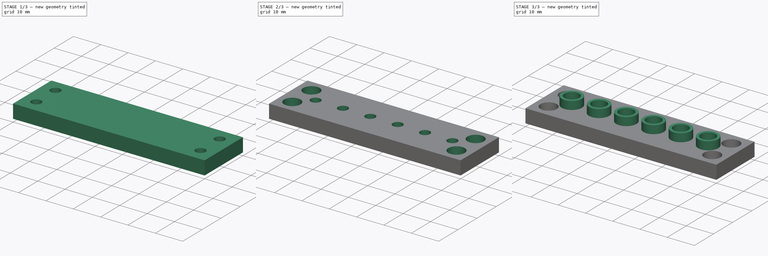
[diagram: build sequence overview — one tinted view per stage of 3, left to right]
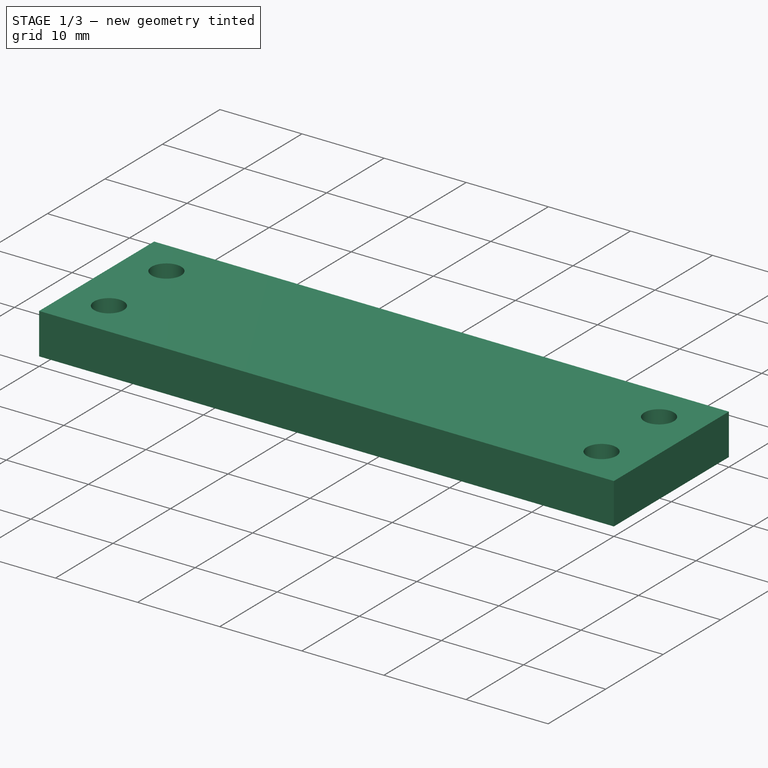
[diagram: stage 1 of 3 — iso view after this stage's code; geometry added in this stage tinted green]
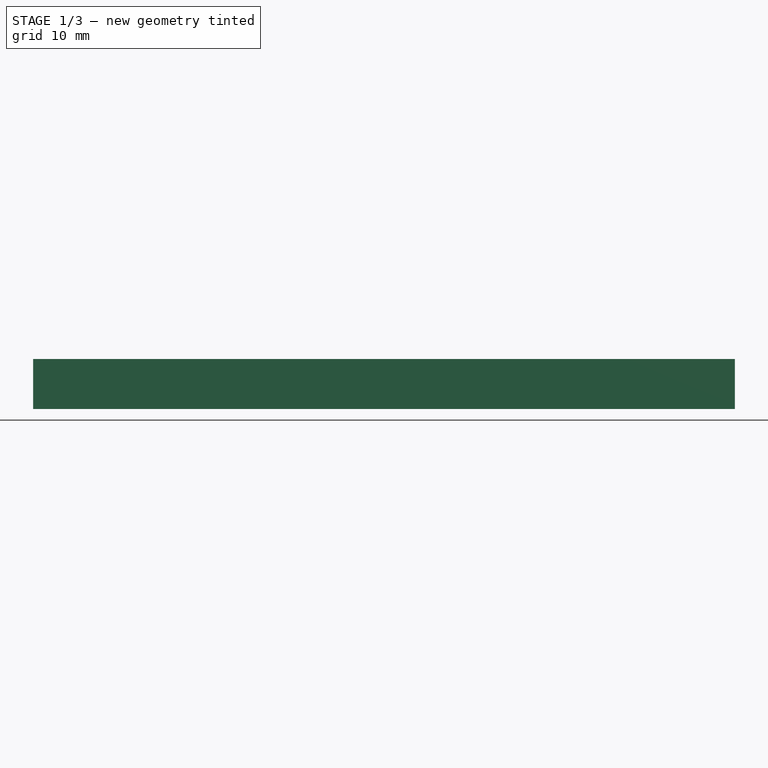
[diagram: stage 1 of 3 — front view after this stage's code; geometry added in this stage tinted green]
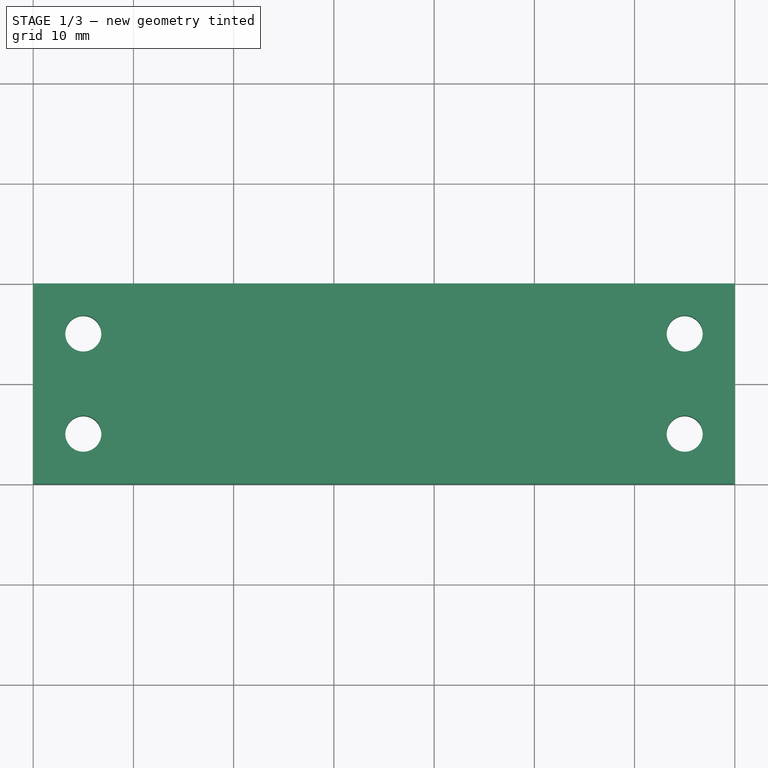
[diagram: stage 1 of 3 — top view after this stage's code; geometry added in this stage tinted green]
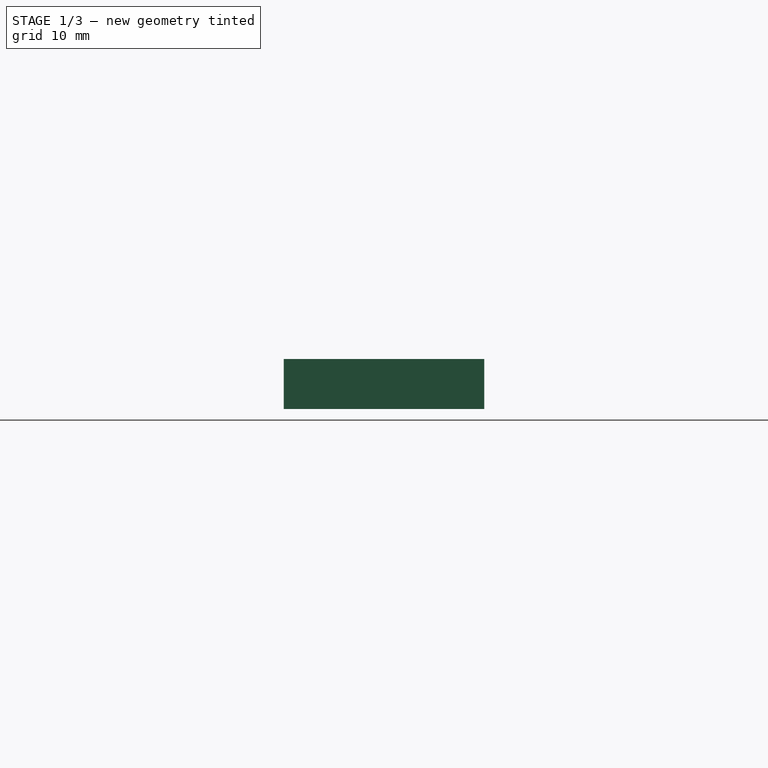
[diagram: stage 1 of 3 — right view after this stage's code; geometry added in this stage tinted green]
FCSTD DOCUMENT
Label: DeltaArmJig
objects: Sketcher::SketchObject×6, PartDesign::Pocket×4, PartDesign::Pad×2
note: 14 computed .brp shape members not serialized (recipe doc carries the construction recipe); baked Part::Feature solids carry a one-line shape summary decoded from their .brp

FEATURE [Sketcher::SketchObject] Sketch
  sketch-geometry (10):
    g0: LineSegment StartX=0 StartY=0 StartZ=0 EndX=0 EndY=20 EndZ=0
    g1: LineSegment StartX=0 StartY=20 StartZ=0 EndX=18 EndY=20 EndZ=0
    g2: LineSegment StartX=52 StartY=20 StartZ=0 EndX=70 EndY=20 EndZ=0
    g3: LineSegment StartX=70 StartY=20 StartZ=0 EndX=70 EndY=0 EndZ=0
    g4: LineSegment StartX=70 StartY=0 StartZ=0 EndX=52 EndY=0 EndZ=0
    g5: LineSegment StartX=18 StartY=0 StartZ=0 EndX=0 EndY=0 EndZ=0
    g6: LineSegment StartX=18 StartY=20 StartZ=0 EndX=52 EndY=20 EndZ=0
    g7: LineSegment [constr] StartX=52 StartY=20 StartZ=0 EndX=52 EndY=0 EndZ=0
    g8: LineSegment StartX=52 StartY=0 StartZ=0 EndX=18 EndY=0 EndZ=0
    g9: LineSegment [constr] StartX=18 StartY=0 StartZ=0 EndX=18 EndY=20 EndZ=0
  constraints (25):
    c: Vertical(g0)
    c: Coincident(g0,g1)
    c: Horizontal(g1)
    c: Horizontal(g2)
    c: Coincident(g2,g3)
    c: Vertical(g3)
    c: Coincident(g3,g4)
    c: Horizontal(g4)
    c: Coincident(g5,g0)
    c: Horizontal(g5)
    c: Coincident(g6,g7)
    c: Coincident(g7,g8)
    c: Coincident(g8,g9)
    c: Coincident(g9,g6)
    c: Horizontal(g6)
    c: Horizontal(g8)
    c: Vertical(g7)
    c: Vertical(g9)
    c: Coincident(g6,g1)
    c: Coincident(g7,g4)
    c: Equal(g2,g1)
    c: DistanceX(g0) = 0
    c: DistanceY(g0) = 0
    c: DistanceY(g0,g0) = 20
    c: DistanceX(g0,g2) = 70
FEATURE [PartDesign::Pad] Pad
  Length = 5
  MirroredExtent = false
  Sketch = -> Sketch
FEATURE [Sketcher::SketchObject] Sketch001
  Placement = pos=(0,0,5) rot=(0,0,1;0rad)
  Support = -> Pad [Face10]
  sketch-geometry (8):
    g0: LineSegment [constr] StartX=5 StartY=15 StartZ=0 EndX=65 EndY=15 EndZ=0
    g1: LineSegment [constr] StartX=65 StartY=15 StartZ=0 EndX=65 EndY=5 EndZ=0
    g2: LineSegment [constr] StartX=65 StartY=5 StartZ=0 EndX=5 EndY=5 EndZ=0
    g3: LineSegment [constr] StartX=5 StartY=5 StartZ=0 EndX=5 EndY=15 EndZ=0
    g4: Circle CenterX=5 CenterY=15 CenterZ=0 NormalX=0 NormalY=0 NormalZ=1 Radius=1.8
    g5: Circle CenterX=65 CenterY=15 CenterZ=0 NormalX=0 NormalY=0 NormalZ=1 Radius=1.8
    g6: Circle CenterX=65 CenterY=5 CenterZ=0 NormalX=0 NormalY=0 NormalZ=1 Radius=1.8
    g7: Circle CenterX=5 CenterY=5 CenterZ=0 NormalX=0 NormalY=0 NormalZ=1 Radius=1.8
  constraints (20):
    c: Coincident(g0,g1)
    c: Coincident(g1,g2)
    c: Coincident(g2,g3)
    c: Coincident(g3,g0)
    c: Horizontal(g0)
    c: Horizontal(g2)
    c: Vertical(g1)
    c: Vertical(g3)
    c: DistanceX(g2) = 5
    c: DistanceY(g2) = 5
    c: DistanceX(g2,g1) = 60
    c: DistanceY(g0,g2) = -10
    c: Coincident(g4,g0)
    c: Coincident(g5,g0)
    c: Coincident(g6,g1)
    c: Coincident(g7,g2)
    c: Equal(g7,g4)
    c: Equal(g4,g5)
    c: Equal(g5,g6)
    c: Radius(g4) = 1.8
FEATURE [PartDesign::Pocket] Pocket
  Length = 5
  Sketch = -> Sketch001
  Type = 0
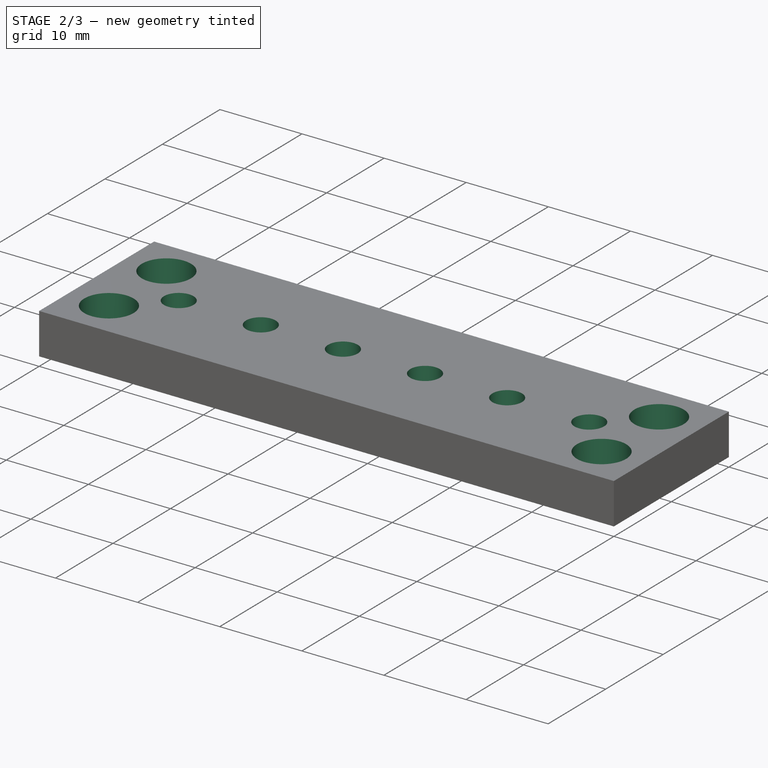
[diagram: stage 2 of 3 — iso view after this stage's code; geometry added in this stage tinted green]
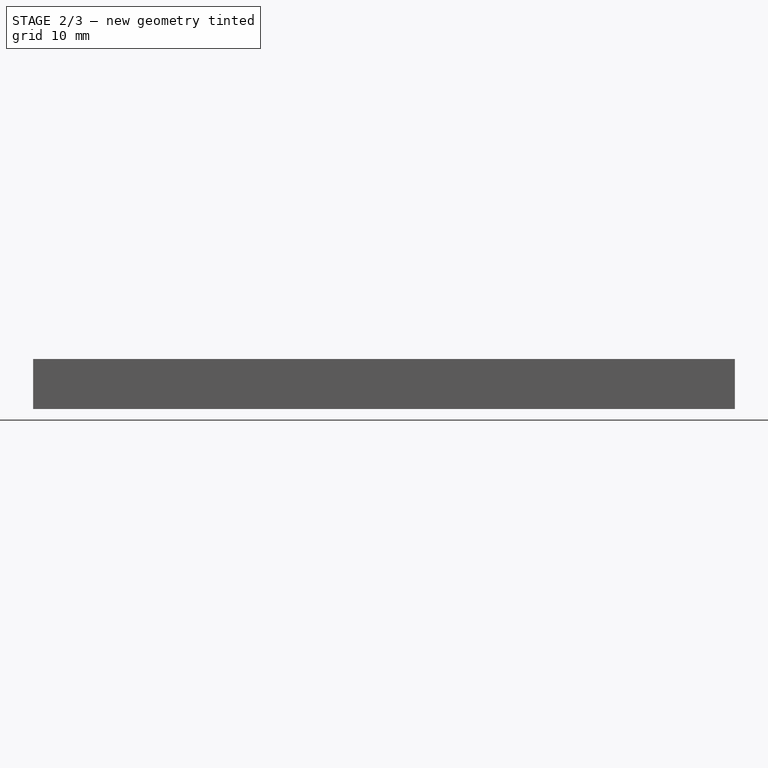
[diagram: stage 2 of 3 — front view after this stage's code; geometry added in this stage tinted green]
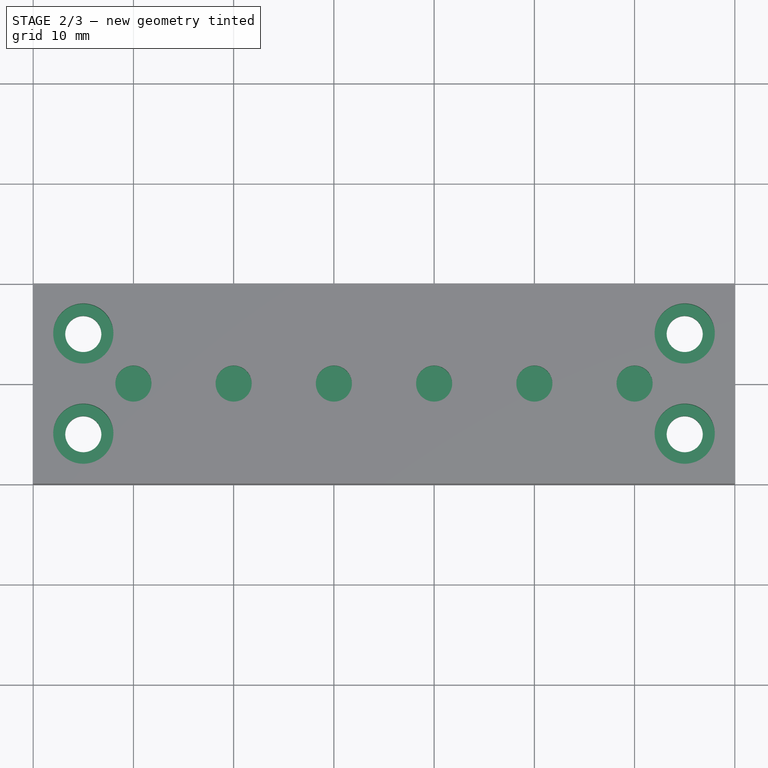
[diagram: stage 2 of 3 — top view after this stage's code; geometry added in this stage tinted green]
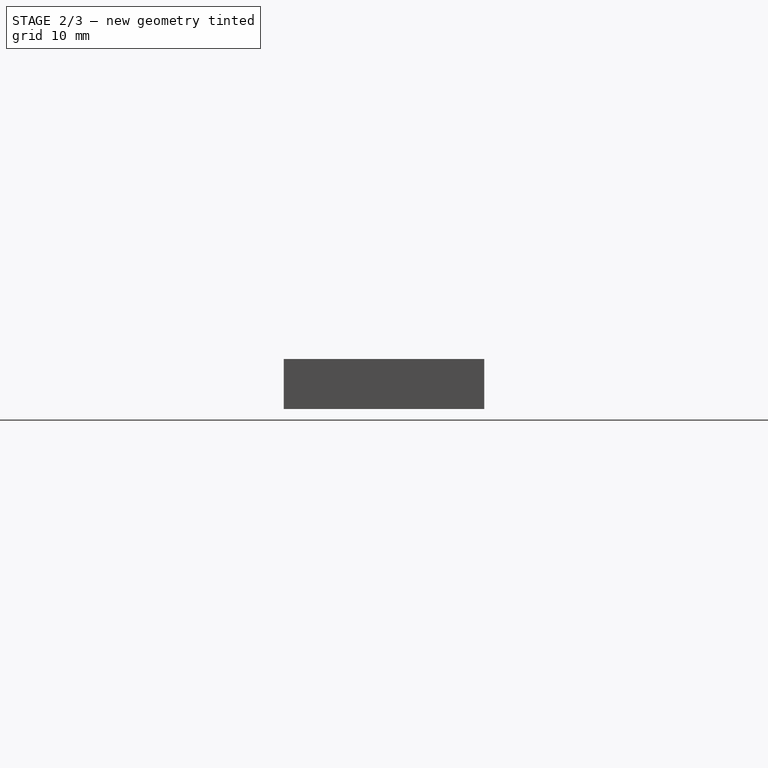
[diagram: stage 2 of 3 — right view after this stage's code; geometry added in this stage tinted green]
FEATURE [Sketcher::SketchObject] Sketch002
  Placement = pos=(0,0,5) rot=(0,0,1;0rad)
  Support = -> Pocket [Face5]
  sketch-geometry (8):
    g0: LineSegment [constr] StartX=5 StartY=15 StartZ=0 EndX=65 EndY=15 EndZ=0
    g1: LineSegment [constr] StartX=65 StartY=15 StartZ=0 EndX=65 EndY=5 EndZ=0
    g2: LineSegment [constr] StartX=65 StartY=5 StartZ=0 EndX=5 EndY=5 EndZ=0
    g3: LineSegment [constr] StartX=5 StartY=5 StartZ=0 EndX=5 EndY=15 EndZ=0
    g4: Circle CenterX=5 CenterY=15 CenterZ=0 NormalX=0 NormalY=0 NormalZ=1 Radius=3
    g5: Circle CenterX=65 CenterY=15 CenterZ=0 NormalX=0 NormalY=0 NormalZ=1 Radius=3
    g6: Circle CenterX=65 CenterY=5 CenterZ=0 NormalX=0 NormalY=0 NormalZ=1 Radius=3
    g7: Circle CenterX=5 CenterY=5 CenterZ=0 NormalX=0 NormalY=0 NormalZ=1 Radius=3
  constraints (20):
    c: Coincident(g0,g1)
    c: Coincident(g1,g2)
    c: Coincident(g2,g3)
    c: Coincident(g3,g0)
    c: Horizontal(g0)
    c: Horizontal(g2)
    c: Vertical(g1)
    c: Vertical(g3)
    c: DistanceX(g2) = 5
    c: DistanceY(g2) = 5
    c: DistanceX(g2,g1) = 60
    c: DistanceY(g0,g2) = -10
    c: Coincident(g4,g0)
    c: Coincident(g5,g0)
    c: Coincident(g6,g1)
    c: Coincident(g7,g2)
    c: Equal(g7,g4)
    c: Equal(g4,g5)
    c: Equal(g5,g6)
    c: Radius(g4) = 3
FEATURE [PartDesign::Pocket] Pocket001
  Length = 3
  Sketch = -> Sketch002
  Type = 0
FEATURE [Sketcher::SketchObject] Sketch003
  Placement = pos=(0,0,5) rot=(0,0,1;0rad)
  Support = -> Pocket001 [Face5]
  sketch-geometry (13):
    g0: LineSegment [constr] StartX=0 StartY=10 StartZ=0 EndX=10 EndY=10 EndZ=0
    g1: LineSegment [constr] StartX=10 StartY=10 StartZ=0 EndX=20 EndY=10 EndZ=0
    g2: LineSegment [constr] StartX=20 StartY=10 StartZ=0 EndX=30 EndY=10 EndZ=0
    g3: LineSegment [constr] StartX=30 StartY=10 StartZ=0 EndX=40 EndY=10 EndZ=0
    g4: LineSegment [constr] StartX=40 StartY=10 StartZ=0 EndX=50 EndY=10 EndZ=0
    g5: LineSegment [constr] StartX=50 StartY=10 StartZ=0 EndX=60 EndY=10 EndZ=0
    g6: LineSegment [constr] StartX=60 StartY=10 StartZ=0 EndX=70 EndY=10 EndZ=0
    g7: Circle CenterX=10 CenterY=10 CenterZ=0 NormalX=0 NormalY=0 NormalZ=1 Radius=1.8
    g8: Circle CenterX=20 CenterY=10 CenterZ=0 NormalX=0 NormalY=0 NormalZ=1 Radius=1.8
    g9: Circle CenterX=30 CenterY=10 CenterZ=0 NormalX=0 NormalY=0 NormalZ=1 Radius=1.8
    g10: Circle CenterX=40 CenterY=10 CenterZ=0 NormalX=0 NormalY=0 NormalZ=1 Radius=1.8
    g11: Circle CenterX=50 CenterY=10 CenterZ=0 NormalX=0 NormalY=0 NormalZ=1 Radius=1.8
    g12: Circle CenterX=60 CenterY=10 CenterZ=0 NormalX=0 NormalY=0 NormalZ=1 Radius=1.8
  constraints (34):
    c: Horizontal(g0)
    c: Coincident(g0,g1)
    c: Horizontal(g1)
    c: Coincident(g1,g2)
    c: Horizontal(g2)
    c: Coincident(g2,g3)
    c: Horizontal(g3)
    c: Coincident(g3,g4)
    c: Horizontal(g4)
    c: Coincident(g4,g5)
    c: Horizontal(g5)
    c: Coincident(g5,g6)
    c: Horizontal(g6)
    c: Equal(g0,g1)
    c: Equal(g1,g2)
    c: Equal(g2,g3)
    c: Equal(g3,g4)
    c: Equal(g4,g5)
    c: Equal(g5,g6)
    c: DistanceX(g0,g6) = 70
    c: DistanceX(g0) = 0
    c: DistanceY(g0) = 10
    c: Coincident(g7,g0)
    c: Coincident(g8,g1)
    c: Coincident(g9,g2)
    c: Coincident(g10,g3)
    c: Coincident(g11,g4)
    c: Coincident(g12,g5)
    c: Equal(g12,g11)
    c: Equal(g11,g10)
    c: Equal(g10,g9)
    c: Equal(g9,g8)
    c: Equal(g8,g7)
    c: Radius(g7) = 1.8
FEATURE [PartDesign::Pocket] Pocket002
  Length = 1.8
  Sketch = -> Sketch003
  Type = 0
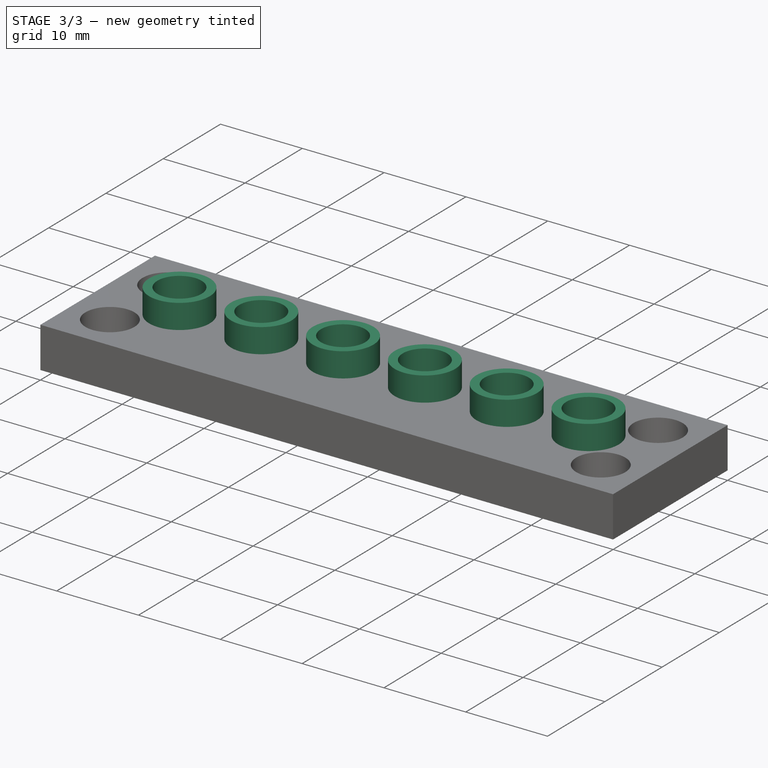
[diagram: stage 3 of 3 — iso view after this stage's code; geometry added in this stage tinted green]
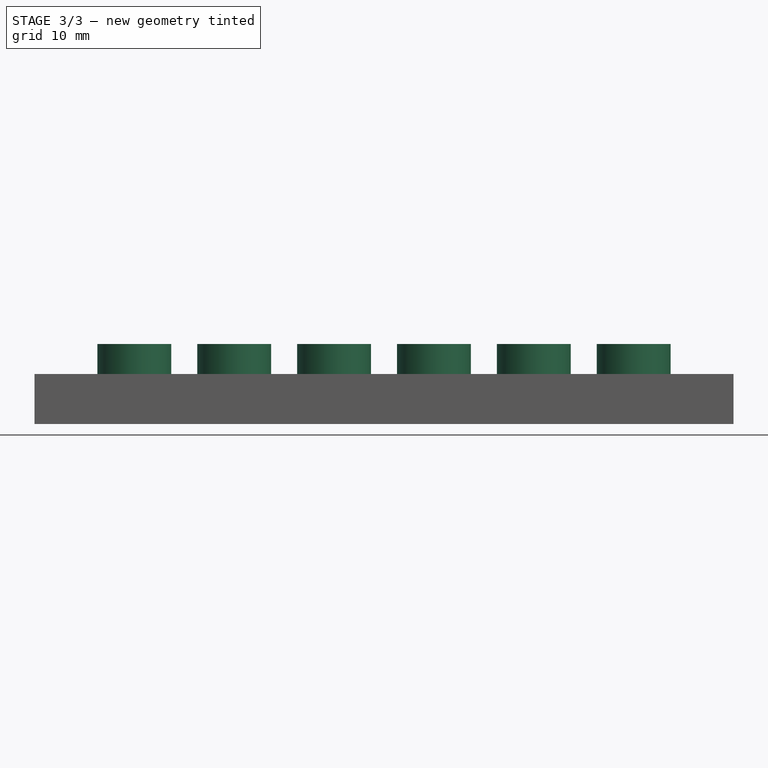
[diagram: stage 3 of 3 — front view after this stage's code; geometry added in this stage tinted green]
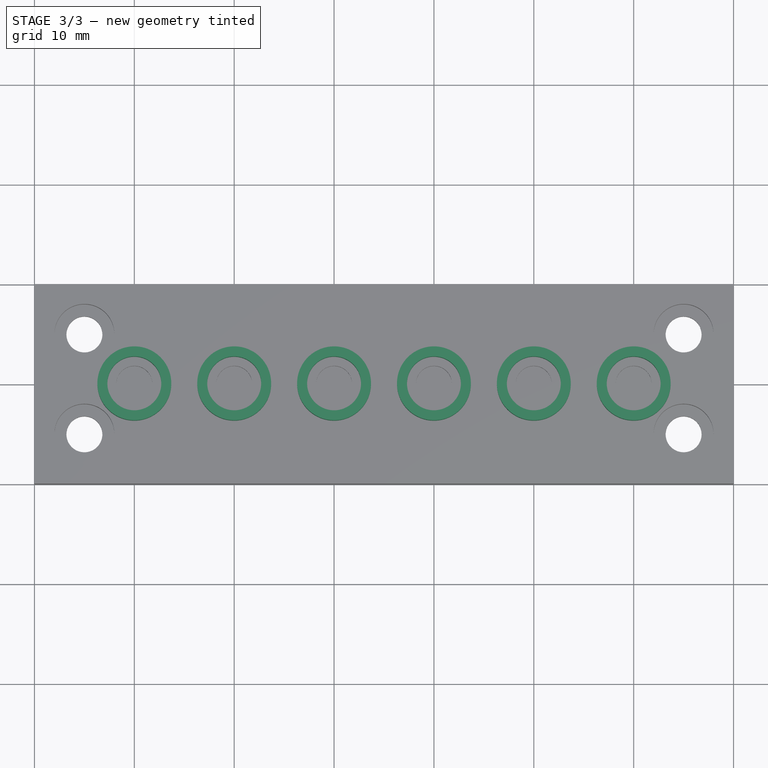
[diagram: stage 3 of 3 — top view after this stage's code; geometry added in this stage tinted green]
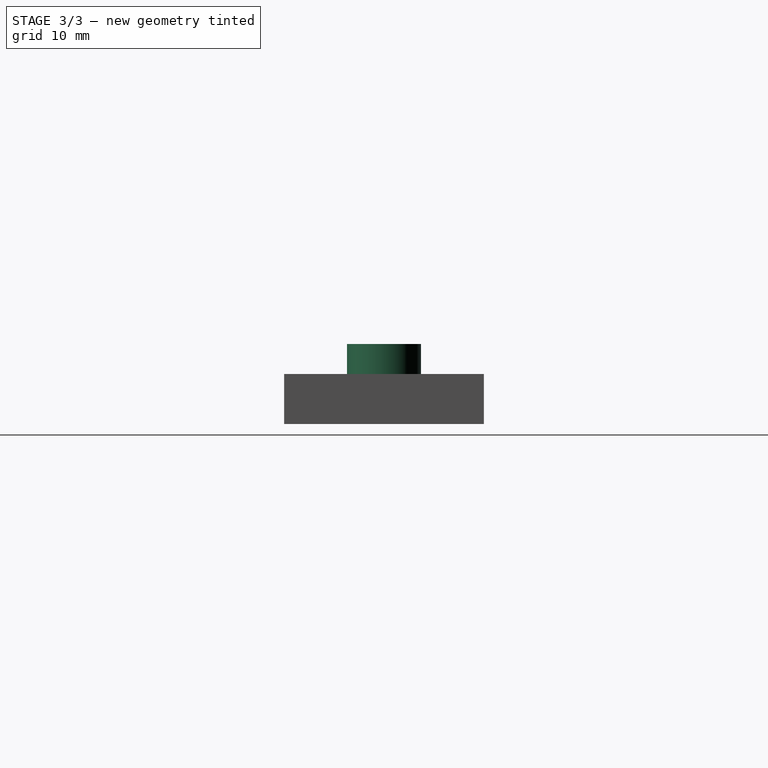
[diagram: stage 3 of 3 — right view after this stage's code; geometry added in this stage tinted green]
FEATURE [Sketcher::SketchObject] Sketch004
  Placement = pos=(0,0,5) rot=(0,0,1;0rad)
  Support = -> Pocket002 [Face5]
  sketch-geometry (19):
    g0: LineSegment [constr] StartX=0 StartY=10 StartZ=0 EndX=10 EndY=10 EndZ=0
    g1: LineSegment [constr] StartX=10 StartY=10 StartZ=0 EndX=20 EndY=10 EndZ=0
    g2: LineSegment [constr] StartX=20 StartY=10 StartZ=0 EndX=30 EndY=10 EndZ=0
    g3: LineSegment [constr] StartX=30 StartY=10 StartZ=0 EndX=40 EndY=10 EndZ=0
    g4: LineSegment [constr] StartX=40 StartY=10 StartZ=0 EndX=50 EndY=10 EndZ=0
    g5: LineSegment [constr] StartX=50 StartY=10 StartZ=0 EndX=60 EndY=10 EndZ=0
    g6: LineSegment [constr] StartX=60 StartY=10 StartZ=0 EndX=70 EndY=10 EndZ=0
    g7: Circle CenterX=10 CenterY=10 CenterZ=0 NormalX=0 NormalY=0 NormalZ=1 Radius=2.7
    g8: Circle CenterX=20 CenterY=10 CenterZ=0 NormalX=0 NormalY=0 NormalZ=1 Radius=2.7
    g9: Circle CenterX=30 CenterY=10 CenterZ=0 NormalX=0 NormalY=0 NormalZ=1 Radius=2.7
    g10: Circle CenterX=40 CenterY=10 CenterZ=0 NormalX=0 NormalY=0 NormalZ=1 Radius=2.7
    g11: Circle CenterX=50 CenterY=10 CenterZ=0 NormalX=0 NormalY=0 NormalZ=1 Radius=2.7
    g12: Circle CenterX=60 CenterY=10 CenterZ=0 NormalX=0 NormalY=0 NormalZ=1 Radius=2.7
    g13: Circle CenterX=10 CenterY=10 CenterZ=0 NormalX=0 NormalY=0 NormalZ=1 Radius=3.7
    g14: Circle CenterX=20 CenterY=10 CenterZ=0 NormalX=0 NormalY=0 NormalZ=1 Radius=3.7
    g15: Circle CenterX=30 CenterY=10 CenterZ=0 NormalX=0 NormalY=0 NormalZ=1 Radius=3.7
    g16: Circle CenterX=40 CenterY=10 CenterZ=0 NormalX=0 NormalY=0 NormalZ=1 Radius=3.7
    g17: Circle CenterX=50 CenterY=10 CenterZ=0 NormalX=0 NormalY=0 NormalZ=1 Radius=3.7
    g18: Circle CenterX=60 CenterY=10 CenterZ=0 NormalX=0 NormalY=0 NormalZ=1 Radius=3.7
  constraints (46):
    c: Horizontal(g0)
    c: Coincident(g0,g1)
    c: Horizontal(g1)
    c: Coincident(g1,g2)
    c: Horizontal(g2)
    c: Coincident(g2,g3)
    c: Horizontal(g3)
    c: Coincident(g3,g4)
    c: Horizontal(g4)
    c: Coincident(g4,g5)
    c: Horizontal(g5)
    c: Coincident(g5,g6)
    c: Horizontal(g6)
    c: Equal(g0,g1)
    c: Equal(g1,g2)
    c: Equal(g2,g3)
    c: Equal(g3,g4)
    c: Equal(g4,g5)
    c: Equal(g5,g6)
    c: DistanceX(g0,g6) = 70
    c: DistanceX(g0) = 0
    c: DistanceY(g0) = 10
    c: Coincident(g7,g0)
    c: Coincident(g8,g1)
    c: Coincident(g9,g2)
    c: Coincident(g10,g3)
    c: Coincident(g11,g4)
    c: Coincident(g12,g5)
    c: Equal(g12,g11)
    c: Equal(g11,g10)
    c: Equal(g10,g9)
    c: Equal(g9,g8)
    c: Equal(g8,g7)
    c: Radius(g7) = 2.7
    c: Coincident(g13,g0)
    c: Coincident(g14,g1)
    c: Coincident(g16,g3)
    c: Coincident(g15,g2)
    c: Coincident(g17,g4)
    c: Coincident(g18,g5)
    c: Equal(g18,g17)
    c: Equal(g17,g16)
    c: Equal(g16,g15)
    c: Equal(g15,g14)
    c: Equal(g14,g13)
    c: Radius(g13) = 3.7
FEATURE [PartDesign::Pad] Pad001
  Length = 3
  MirroredExtent = false
  Sketch = -> Sketch004
FEATURE [Sketcher::SketchObject] Sketch005
  Placement = pos=(0,0,0) rot=(1,0,0;3.14159rad)
  Support = -> Pad001 [Face4]
  sketch-geometry (71):
    g0: LineSegment StartX=7 StartY=-11.7321 StartZ=0 EndX=7 EndY=-8.26795 EndZ=0
    g1: LineSegment StartX=7 StartY=-8.26795 StartZ=0 EndX=10 EndY=-6.5359 EndZ=0
    g2: LineSegment StartX=10 StartY=-6.5359 StartZ=0 EndX=13 EndY=-8.26795 EndZ=0
    g3: LineSegment StartX=13 StartY=-8.26795 StartZ=0 EndX=13 EndY=-11.7321 EndZ=0
    g4: LineSegment StartX=13 StartY=-11.7321 StartZ=0 EndX=10 EndY=-13.4641 EndZ=0
    g5: LineSegment StartX=10 StartY=-13.4641 StartZ=0 EndX=7 EndY=-11.7321 EndZ=0
    g6: LineSegment [constr] StartX=7 StartY=-8.26795 StartZ=0 EndX=10 EndY=-10 EndZ=0
    g7: LineSegment [constr] StartX=10 StartY=-10 StartZ=0 EndX=7 EndY=-11.7321 EndZ=0
    g8: LineSegment [constr] StartX=13 StartY=-11.7321 StartZ=0 EndX=10 EndY=-10 EndZ=0
    g9: LineSegment [constr] StartX=10 StartY=-10 StartZ=0 EndX=13 EndY=-8.26795 EndZ=0
    g10: LineSegment [constr] StartX=10 StartY=-10 StartZ=0 EndX=10 EndY=-13.4641 EndZ=0
    g11: LineSegment [constr] StartX=0 StartY=-10 StartZ=0 EndX=10 EndY=-10 EndZ=0
    g12: LineSegment [constr] StartX=10 StartY=-10 StartZ=0 EndX=20 EndY=-10 EndZ=0
    g13: LineSegment [constr] StartX=20 StartY=-10 StartZ=0 EndX=30 EndY=-10 EndZ=0
    g14: LineSegment [constr] StartX=30 StartY=-10 StartZ=0 EndX=40 EndY=-10 EndZ=0
    g15: LineSegment [constr] StartX=40 StartY=-10 StartZ=0 EndX=50 EndY=-10 EndZ=0
    g16: LineSegment [constr] StartX=50 StartY=-10 StartZ=0 EndX=60 EndY=-10 EndZ=0
    g17: LineSegment [constr] StartX=60 StartY=-10 StartZ=0 EndX=70 EndY=-10 EndZ=0
    g18: LineSegment StartX=17 StartY=-11.7321 StartZ=0 EndX=17 EndY=-8.26795 EndZ=0
    g19: LineSegment StartX=17 StartY=-8.26795 StartZ=0 EndX=20 EndY=-6.5359 EndZ=0
    g20: LineSegment StartX=20 StartY=-6.5359 StartZ=0 EndX=23 EndY=-8.26795 EndZ=0
    g21: LineSegment StartX=23 StartY=-8.26795 StartZ=0 EndX=23 EndY=-11.7321 EndZ=0
    g22: LineSegment StartX=23 StartY=-11.7321 StartZ=0 EndX=20 EndY=-13.4641 EndZ=0
    g23: LineSegment StartX=20 StartY=-13.4641 StartZ=0 EndX=17 EndY=-11.7321 EndZ=0
    g24: LineSegment [constr] StartX=17 StartY=-8.26795 StartZ=0 EndX=20 EndY=-10 EndZ=0
    g25: LineSegment [constr] StartX=20 StartY=-10 StartZ=0 EndX=17 EndY=-11.7321 EndZ=0
    g26: LineSegment [constr] StartX=23 StartY=-11.7321 StartZ=0 EndX=20 EndY=-10 EndZ=0
    g27: LineSegment [constr] StartX=20 StartY=-10 StartZ=0 EndX=23 EndY=-8.26795 EndZ=0
    g28: LineSegment [constr] StartX=20 StartY=-10 StartZ=0 EndX=20 EndY=-13.4641 EndZ=0
    g29: LineSegment StartX=27 StartY=-11.7321 StartZ=0 EndX=27 EndY=-8.26795 EndZ=0
    g30: LineSegment StartX=27 StartY=-8.26795 StartZ=0 EndX=30 EndY=-6.5359 EndZ=0
    g31: LineSegment StartX=30 StartY=-6.5359 StartZ=0 EndX=33 EndY=-8.26795 EndZ=0
    g32: LineSegment StartX=33 StartY=-8.26795 StartZ=0 EndX=33 EndY=-11.7321 EndZ=0
    g33: LineSegment StartX=33 StartY=-11.7321 StartZ=0 EndX=30 EndY=-13.4641 EndZ=0
    g34: LineSegment StartX=30 StartY=-13.4641 StartZ=0 EndX=27 EndY=-11.7321 EndZ=0
    g35: LineSegment [constr] StartX=27 StartY=-8.26795 StartZ=0 EndX=30 EndY=-10 EndZ=0
    g36: LineSegment [constr] StartX=30 StartY=-10 StartZ=0 EndX=27 EndY=-11.7321 EndZ=0
    g37: LineSegment [constr] StartX=33 StartY=-11.7321 StartZ=0 EndX=30 EndY=-10 EndZ=0
    g38: LineSegment [constr] StartX=30 StartY=-10 StartZ=0 EndX=33 EndY=-8.26795 EndZ=0
    g39: LineSegment [constr] StartX=30 StartY=-10 StartZ=0 EndX=30 EndY=-13.4641 EndZ=0
    g40: LineSegment StartX=37 StartY=-11.7321 StartZ=0 EndX=37 EndY=-8.26795 EndZ=0
    g41: LineSegment StartX=37 StartY=-8.26795 StartZ=0 EndX=40 EndY=-6.5359 EndZ=0
    g42: LineSegment StartX=40 StartY=-6.5359 StartZ=0 EndX=43 EndY=-8.26795 EndZ=0
    g43: LineSegment StartX=43 StartY=-8.26795 StartZ=0 EndX=43 EndY=-11.7321 EndZ=0
    g44: LineSegment StartX=43 StartY=-11.7321 StartZ=0 EndX=40 EndY=-13.4641 EndZ=0
    g45: LineSegment StartX=40 StartY=-13.4641 StartZ=0 EndX=37 EndY=-11.7321 EndZ=0
    g46: LineSegment [constr] StartX=37 StartY=-8.26795 StartZ=0 EndX=40 EndY=-10 EndZ=0
    g47: LineSegment [constr] StartX=40 StartY=-10 StartZ=0 EndX=37 EndY=-11.7321 EndZ=0
    g48: LineSegment [constr] StartX=43 StartY=-11.7321 StartZ=0 EndX=40 EndY=-10 EndZ=0
    g49: LineSegment [constr] StartX=40 StartY=-10 StartZ=0 EndX=43 EndY=-8.26795 EndZ=0
    g50: LineSegment [constr] StartX=40 StartY=-10 StartZ=0 EndX=40 EndY=-13.4641 EndZ=0
    g51: LineSegment StartX=47 StartY=-11.7321 StartZ=0 EndX=47 EndY=-8.26795 EndZ=0
    g52: LineSegment StartX=47 StartY=-8.26795 StartZ=0 EndX=50 EndY=-6.5359 EndZ=0
    g53: LineSegment StartX=50 StartY=-6.5359 StartZ=0 EndX=53 EndY=-8.26795 EndZ=0
    g54: LineSegment StartX=53 StartY=-8.26795 StartZ=0 EndX=53 EndY=-11.7321 EndZ=0
    g55: LineSegment StartX=53 StartY=-11.7321 StartZ=0 EndX=50 EndY=-13.4641 EndZ=0
    g56: LineSegment StartX=50 StartY=-13.4641 StartZ=0 EndX=47 EndY=-11.7321 EndZ=0
    g57: LineSegment [constr] StartX=47 StartY=-8.26795 StartZ=0 EndX=50 EndY=-10 EndZ=0
    g58: LineSegment [constr] StartX=50 StartY=-10 StartZ=0 EndX=47 EndY=-11.7321 EndZ=0
    g59: LineSegment [constr] StartX=53 StartY=-11.7321 StartZ=0 EndX=50 EndY=-10 EndZ=0
    g60: LineSegment [constr] StartX=50 StartY=-10 StartZ=0 EndX=50 EndY=-13.4641 EndZ=0
    g61: LineSegment StartX=57 StartY=-11.7321 StartZ=0 EndX=57 EndY=-8.26795 EndZ=0
    g62: LineSegment StartX=57 StartY=-8.26795 StartZ=0 EndX=60 EndY=-6.5359 EndZ=0
    g63: LineSegment StartX=60 StartY=-6.5359 StartZ=0 EndX=63 EndY=-8.26795 EndZ=0
    g64: LineSegment StartX=63 StartY=-8.26795 StartZ=0 EndX=63 EndY=-11.7321 EndZ=0
    g65: LineSegment StartX=63 StartY=-11.7321 StartZ=0 EndX=60 EndY=-13.4641 EndZ=0
    g66: LineSegment StartX=60 StartY=-13.4641 StartZ=0 EndX=57 EndY=-11.7321 EndZ=0
    g67: LineSegment [constr] StartX=57 StartY=-8.26795 StartZ=0 EndX=60 EndY=-10 EndZ=0
    g68: LineSegment [constr] StartX=60 StartY=-10 StartZ=0 EndX=57 EndY=-11.7321 EndZ=0
    g69: LineSegment [constr] StartX=63 StartY=-11.7321 StartZ=0 EndX=60 EndY=-10 EndZ=0
    g70: LineSegment [constr] StartX=60 StartY=-10 StartZ=0 EndX=60 EndY=-13.4641 EndZ=0
  constraints (186):
    c: Vertical(g0)
    c: Coincident(g0,g1)
    c: Coincident(g1,g2)
    c: Coincident(g2,g3)
    c: Vertical(g3)
    c: Coincident(g3,g4)
    c: Coincident(g4,g5)
    c: Coincident(g5,g0)
    c: Coincident(g6,g0)
    c: Coincident(g6,g7)
    c: Coincident(g7,g0)
    c: Coincident(g8,g6)
    c: Coincident(g8,g9)
    c: Coincident(g9,g2)
    c: Coincident(g10,g6)
    c: Coincident(g10,g4)
    c: Vertical(g10)
    c: Coincident(g3,g8)
    c: Equal(g9,g8)
    c: Equal(g8,g10)
    c: Equal(g10,g7)
    c: Equal(g7,g6)
    c: Equal(g5,g0)
    c: Equal(g0,g1)
    c: Equal(g1,g2)
    c: Equal(g2,g3)
    c: DistanceX(g0,g3) = 6
    c: Coincident(g11,g6)
    c: Horizontal(g11)
    c: Coincident(g11,g12)
    c: Horizontal(g12)
    c: Coincident(g12,g13)
    c: Horizontal(g13)
    c: Coincident(g13,g14)
    c: Horizontal(g14)
    c: Coincident(g14,g15)
    c: Horizontal(g15)
    c: Coincident(g15,g16)
    c: Horizontal(g16)
    c: Coincident(g16,g17)
    c: Horizontal(g17)
    c: Equal(g15,g16)
    c: Equal(g16,g17)
    c: Equal(g17,g14)
    c: Equal(g14,g13)
    c: Equal(g13,g12)
    c: Equal(g12,g11)
    c: DistanceX(g11,g17) = 70
    c: DistanceX(g11) = 0
    c: DistanceY(g11) = -10
    c: Vertical(g18)
    c: Coincident(g18,g19)
    c: Coincident(g19,g20)
    c: Coincident(g20,g21)
    c: Vertical(g21)
    c: Coincident(g21,g22)
    c: Coincident(g22,g23)
    c: Coincident(g23,g18)
    c: Coincident(g24,g18)
    c: Coincident(g24,g12)
    c: Coincident(g24,g25)
    c: Coincident(g25,g18)
    c: Coincident(g26,g12)
    c: Coincident(g26,g27)
    c: Coincident(g27,g20)
    c: Coincident(g28,g12)
    c: Coincident(g28,g22)
    c: Vertical(g28)
    c: Coincident(g26,g21)
    c: Equal(g21,g20)
    c: Equal(g20,g19)
    c: Equal(g19,g18)
    c: Equal(g18,g23)
    c: Equal(g23,g22)
    c: DistanceX(g18,g21) = 6
    c: Equal(g25,g24)
    c: Equal(g24,g28)
    c: Equal(g26,g27)
    c: Vertical(g29)
    c: Coincident(g29,g30)
    c: Coincident(g30,g31)
    c: Coincident(g31,g32)
    c: Vertical(g32)
    c: Coincident(g32,g33)
    c: Coincident(g33,g34)
    c: Coincident(g34,g29)
    c: Coincident(g35,g29)
    c: Coincident(g35,g13)
    c: Coincident(g35,g36)
    c: Coincident(g36,g29)
    c: Coincident(g37,g13)
    c: Coincident(g37,g38)
    c: Coincident(g38,g31)
    c: Coincident(g39,g13)
    c: Coincident(g39,g33)
    c: Vertical(g39)
    c: Coincident(g33,g37)
    c: Equal(g30,g31)
    c: Equal(g31,g29)
    c: Equal(g29,g34)
    c: Equal(g34,g33)
    c: Equal(g33,g32)
    c: DistanceX(g29,g32) = 6
    c: Equal(g35,g36)
    c: Equal(g36,g39)
    c: Equal(g39,g37)
    c: Vertical(g40)
    c: Coincident(g40,g41)
    c: Coincident(g41,g42)
    c: Coincident(g42,g43)
    c: Vertical(g43)
    c: Coincident(g43,g44)
    c: Coincident(g44,g45)
    c: Coincident(g45,g40)
    c: Coincident(g46,g40)
    c: Coincident(g46,g14)
    c: Coincident(g46,g47)
    c: Coincident(g47,g40)
    c: Coincident(g48,g14)
    c: Coincident(g48,g49)
    c: Coincident(g49,g42)
    c: Coincident(g50,g14)
    c: Coincident(g50,g44)
    c: Vertical(g50)
    c: Coincident(g43,g48)
    c: Equal(g46,g47)
    c: Equal(g47,g50)
    c: Equal(g50,g48)
    c: Equal(g42,g41)
    c: Equal(g41,g40)
    c: Equal(g40,g45)
    c: Equal(g45,g44)
    c: Equal(g44,g43)
    c: DistanceX(g40,g43) = 6
    c: Vertical(g51)
    c: Coincident(g51,g52)
    c: Coincident(g52,g53)
    c: Coincident(g53,g54)
    c: Vertical(g54)
    c: Coincident(g54,g55)
    c: Coincident(g55,g56)
    c: Coincident(g56,g51)
    c: Coincident(g57,g51)
    c: Coincident(g57,g15)
    c: Coincident(g57,g58)
    c: Coincident(g58,g51)
    c: Coincident(g59,g15)
    c: Coincident(g59,g60)
    c: Coincident(g60,g55)
    c: Coincident(g59,g54)
    c: Vertical(g60)
    c: Equal(g57,g58)
    c: Equal(g58,g60)
    c: Equal(g60,g59)
    c: DistanceX(g51,g54) = 6
    c: Equal(g56,g51)
    c: Equal(g51,g52)
    c: Equal(g52,g53)
    c: Equal(g53,g54)
    c: Equal(g54,g55)
    c: Vertical(g61)
    c: Coincident(g61,g62)
    c: Coincident(g62,g63)
    c: Coincident(g63,g64)
    c: Vertical(g64)
    c: Coincident(g64,g65)
    c: Coincident(g65,g66)
    c: Coincident(g66,g61)
    c: Coincident(g67,g61)
    c: Coincident(g67,g16)
    c: Coincident(g67,g68)
    c: Coincident(g68,g61)
    c: Coincident(g69,g16)
    c: Coincident(g69,g70)
    c: Coincident(g70,g65)
    c: Vertical(g70)
    c: Equal(g67,g68)
    c: Equal(g68,g70)
    c: Equal(g70,g69)
    c: Coincident(g69,g64)
    c: DistanceX(g64,g61) = -6
    c: Equal(g66,g61)
    c: Equal(g61,g62)
    c: Equal(g62,g63)
    c: Equal(g63,g64)
    c: Equal(g64,g65)
FEATURE [PartDesign::Pocket] Pocket003
  Length = 3
  Sketch = -> Sketch005
  Type = 0
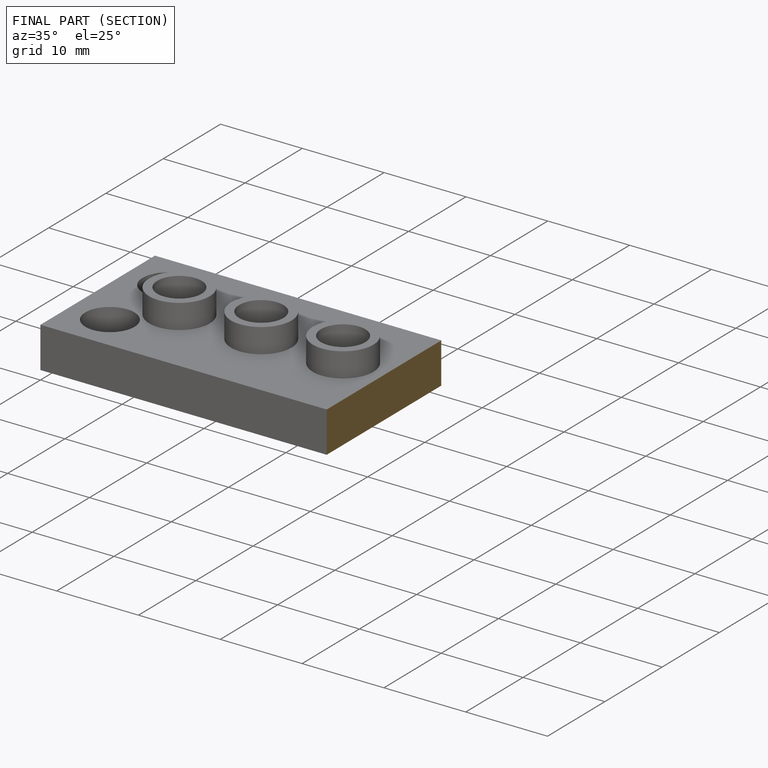
[diagram: finished part — half-section view (interior)]
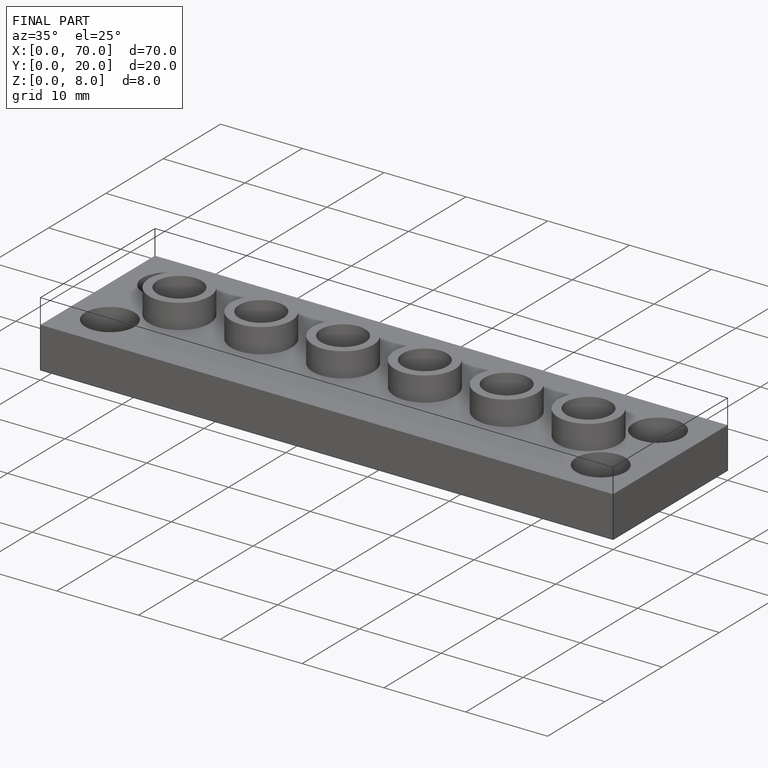
[diagram: finished part — iso view with bounding-box wireframe]
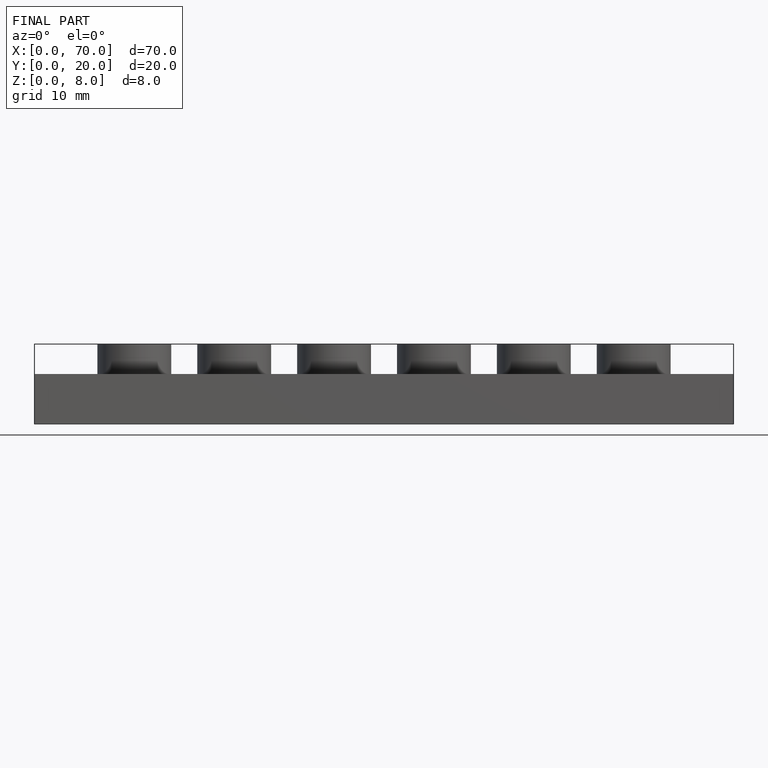
[diagram: finished part — front view with bounding-box wireframe]
